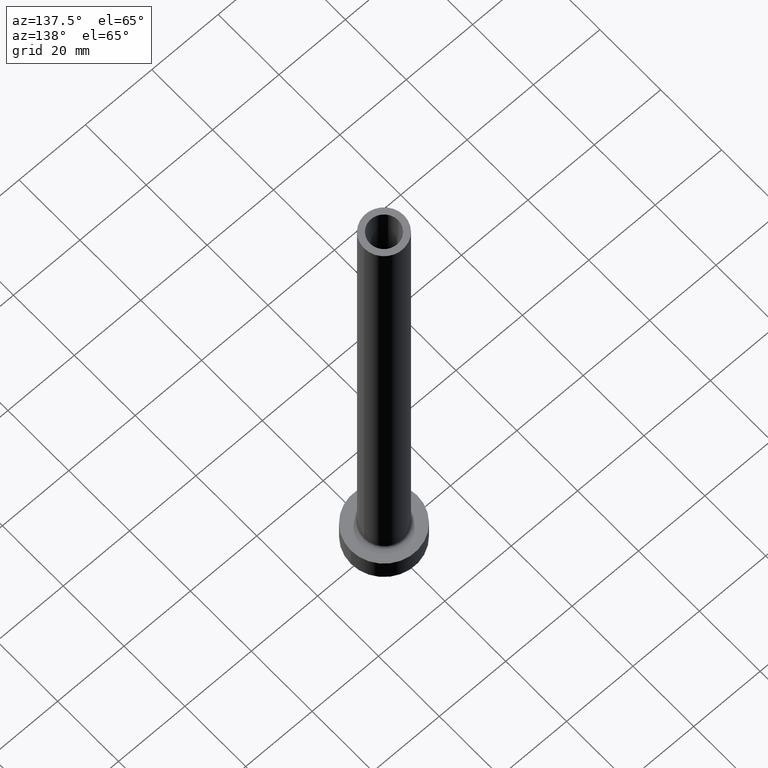
[diagram: clean part render]
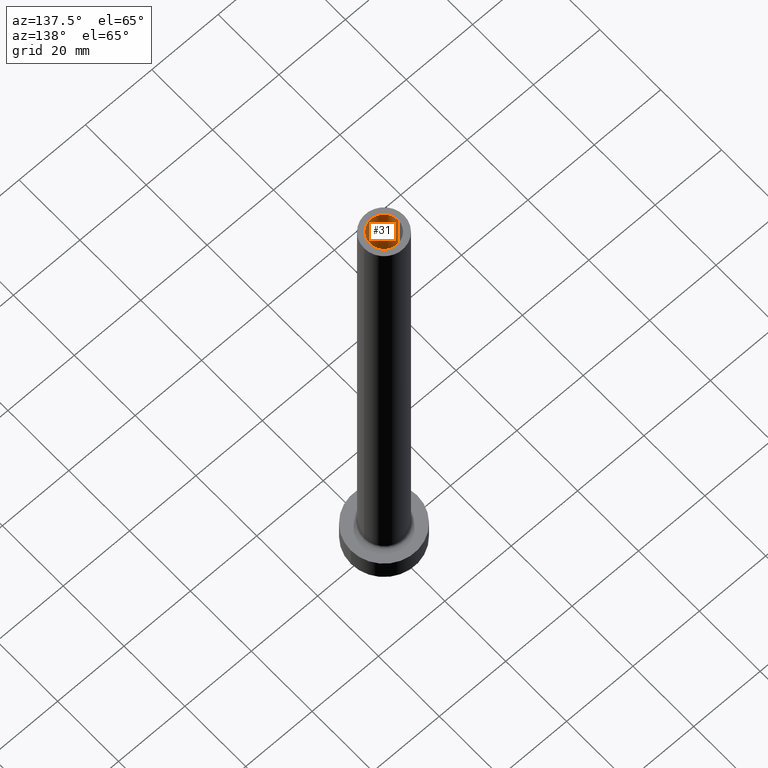
[diagram: same view with one face highlighted and labeled with its STEP entity id]
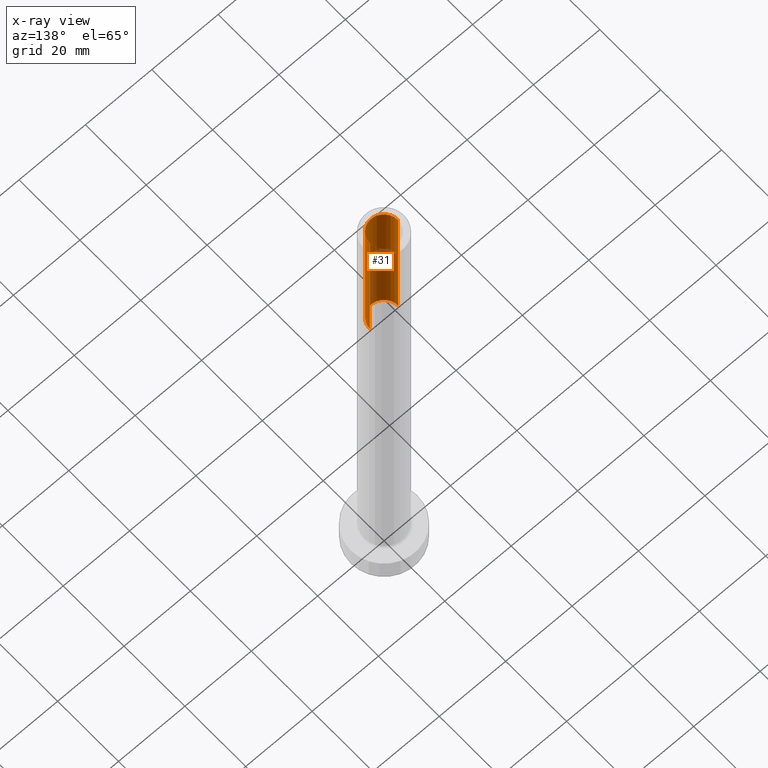
[diagram: x-ray of the same camera — body ghosted, the highlighted face saturated]
A machine part, auxiliary view. The second image highlights one B-rep face of the part: STEP entity #31.
The next image is the same camera in x-ray: the body ghosted, the highlighted face saturated — about 47% of this face is hidden behind the body in this view.
In plain terms, the highlighted cylindrical surface (edge-blend (fillet) strip) has radius 4.25 mm, axis along (0, 0, -1).
Its self-contained STEP definition (entity closure, byte-faithful):
#3 = CARTESIAN_POINT ( 'NONE',  ( 0.000000000000000000, 0.000000000000000000, 160.0000000000000000 ) ) ;
#31 = ADVANCED_FACE ( 'NONE', ( #287 ), #455, .F. ) ;
#34 = DIRECTION ( 'NONE',  ( -1.000000000000000000, 0.000000000000000000, 0.000000000000000000 ) ) ;
#40 = EDGE_CURVE ( 'NONE', #49, #155, #358, .T. ) ;
#49 = VERTEX_POINT ( 'NONE', #74 ) ;
#72 = EDGE_CURVE ( 'NONE', #318, #49, #211, .T. ) ;
#74 = CARTESIAN_POINT ( 'NONE',  ( 4.250000000000000000, 5.204748896376249713E-16, 160.0000000000000000 ) ) ;
#102 = DIRECTION ( 'NONE',  ( 1.000000000000000000, 0.000000000000000000, 0.000000000000000000 ) ) ;
#107 = DIRECTION ( 'NONE',  ( 0.000000000000000000, 0.000000000000000000, -1.000000000000000000 ) ) ;
#113 = CARTESIAN_POINT ( 'NONE',  ( -4.250000000000000000, 0.000000000000000000, 160.0000000000000000 ) ) ;
#137 = DIRECTION ( 'NONE',  ( 1.000000000000000000, 0.000000000000000000, 0.000000000000000000 ) ) ;
#144 = EDGE_CURVE ( 'NONE', #318, #220, #289, .T. ) ;
#151 = ORIENTED_EDGE ( 'NONE', *, *, #144, .F. ) ;
#155 = VERTEX_POINT ( 'NONE', #393 ) ;
#182 = CIRCLE ( 'NONE', #334, 4.250000000000000000 ) ;
#211 = CIRCLE ( 'NONE', #441, 4.250000000000000000 ) ;
#216 = ORIENTED_EDGE ( 'NONE', *, *, #72, .T. ) ;
#218 = CARTESIAN_POINT ( 'NONE',  ( 4.250000000000000000, 5.204748896376249713E-16, 160.0000000000000000 ) ) ;
#220 = VERTEX_POINT ( 'NONE', #226 ) ;
#226 = CARTESIAN_POINT ( 'NONE',  ( -4.250000000000000000, 0.000000000000000000, 115.0000000000000000 ) ) ;
#253 = ORIENTED_EDGE ( 'NONE', *, *, #40, .T. ) ;
#255 = DIRECTION ( 'NONE',  ( 0.000000000000000000, 0.000000000000000000, -1.000000000000000000 ) ) ;
#269 = CARTESIAN_POINT ( 'NONE',  ( -4.250000000000000000, 0.000000000000000000, 160.0000000000000000 ) ) ;
#281 = CARTESIAN_POINT ( 'NONE',  ( 0.000000000000000000, 0.000000000000000000, 115.0000000000000000 ) ) ;
#286 = ORIENTED_EDGE ( 'NONE', *, *, #398, .F. ) ;
#287 = FACE_OUTER_BOUND ( 'NONE', #327, .T. ) ;
#289 = LINE ( 'NONE', #113, #352 ) ;
#318 = VERTEX_POINT ( 'NONE', #269 ) ;
#327 = EDGE_LOOP ( 'NONE', ( #216, #253, #286, #151 ) ) ;
#334 = AXIS2_PLACEMENT_3D ( 'NONE', #281, #420, #102 ) ;
#348 = DIRECTION ( 'NONE',  ( 0.000000000000000000, 0.000000000000000000, -1.000000000000000000 ) ) ;
#352 = VECTOR ( 'NONE', #255, 1000.000000000000000 ) ;
#358 = LINE ( 'NONE', #218, #375 ) ;
#375 = VECTOR ( 'NONE', #107, 1000.000000000000000 ) ;
#381 = CARTESIAN_POINT ( 'NONE',  ( 0.000000000000000000, 0.000000000000000000, 160.0000000000000000 ) ) ;
#385 = DIRECTION ( 'NONE',  ( 0.000000000000000000, 0.000000000000000000, 1.000000000000000000 ) ) ;
#391 = AXIS2_PLACEMENT_3D ( 'NONE', #381, #348, #34 ) ;
#393 = CARTESIAN_POINT ( 'NONE',  ( 4.250000000000000000, 5.204748896376249713E-16, 115.0000000000000000 ) ) ;
#398 = EDGE_CURVE ( 'NONE', #220, #155, #182, .T. ) ;
#420 = DIRECTION ( 'NONE',  ( 0.000000000000000000, 0.000000000000000000, 1.000000000000000000 ) ) ;
#441 = AXIS2_PLACEMENT_3D ( 'NONE', #3, #385, #137 ) ;
#455 = CYLINDRICAL_SURFACE ( 'NONE', #391, 4.250000000000000000 ) ;